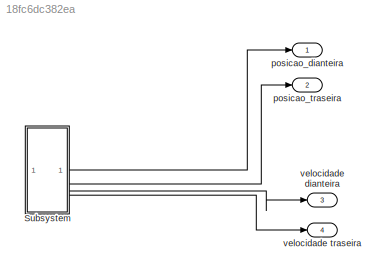
MODEL slx_18fc6dc382ea
KIND model
CONFIG AbsTol = auto
CONFIG EnableMultiTasking = off
CONFIG FixedStep = auto
CONFIG MaxStep = auto
CONFIG MinStep = auto
CONFIG RelTol = 1e-3
CONFIG SampleTimeConstraint = Unconstrained
CONFIG SolverName = VariableStepAuto
CONFIG StartTime = 0.0
CONFIG StopTime = 10.0
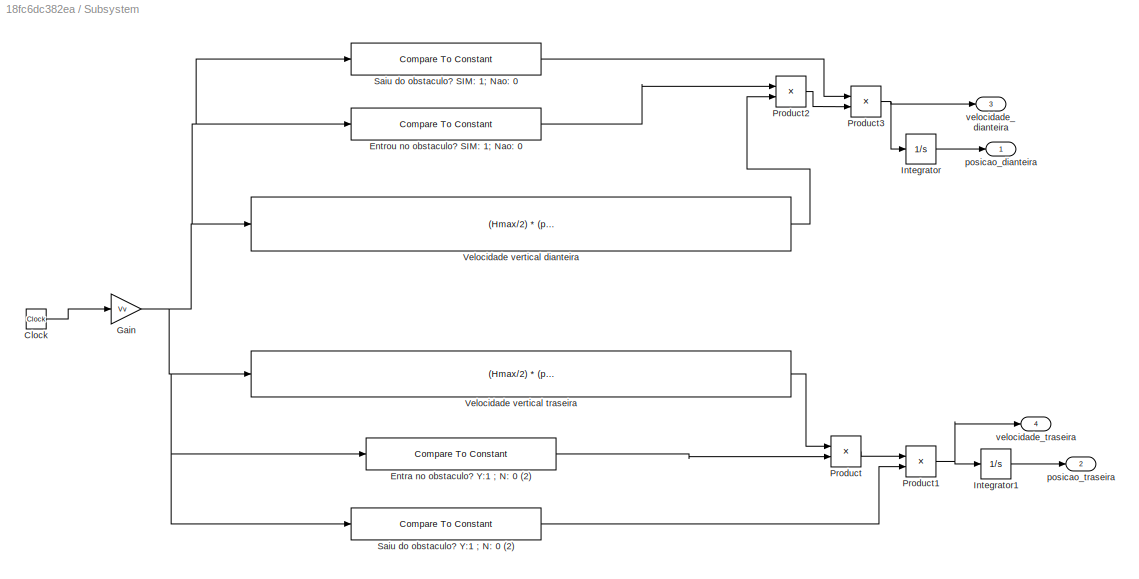
BLOCK [SubSystem] Subsystem
BLOCK [Clock] Subsystem/Clock
BLOCK [Reference] Subsystem/Entra no obstaculo? Y:1 ; N: 0 (2)  REF=simulink/Logic and Bit
Operations/Compare
To Constant
  SourceBlock = simulink/Logic and Bit\nOperations/Compare\nTo Constant
  SourceType = Compare To Constant
BLOCK [Reference] Subsystem/Entrou no obstaculo? SIM: 1; Nao: 0   REF=simulink/Logic and Bit
Operations/Compare
To Constant
  SourceBlock = simulink/Logic and Bit\nOperations/Compare\nTo Constant
  SourceType = Compare To Constant
BLOCK [Gain] Subsystem/Gain
  Gain = Vv
BLOCK [Integrator] Subsystem/Integrator
BLOCK [Integrator] Subsystem/Integrator1
BLOCK [Product] Subsystem/Product
BLOCK [Product] Subsystem/Product1
BLOCK [Product] Subsystem/Product2
BLOCK [Product] Subsystem/Product3
BLOCK [Reference] Subsystem/Saiu do obstaculo? SIM: 1; Nao: 0   REF=simulink/Logic and Bit
Operations/Compare
To Constant
  SourceBlock = simulink/Logic and Bit\nOperations/Compare\nTo Constant
  SourceType = Compare To Constant
BLOCK [Reference] Subsystem/Saiu do obstaculo? Y:1 ; N: 0 (2)  REF=simulink/Logic and Bit
Operations/Compare
To Constant
  SourceBlock = simulink/Logic and Bit\nOperations/Compare\nTo Constant
  SourceType = Compare To Constant
BLOCK [Fcn] Subsystem/Velocidade vertical dianteira
  Expr = (Hmax/2) * (pi*Vv/Lqm) * sin( (pi/Lqm) * (u(1) - (Xobs - a_Ax)) );
BLOCK [Fcn] Subsystem/Velocidade vertical traseira
  Expr = (Hmax/2) * (pi*Vv/Lqm) * sin( (pi/Lqm) * (u(1) - a2 - Xobs) )
BLOCK [Outport] Subsystem/posicao_dianteira
BLOCK [Outport] Subsystem/posicao_traseira
  Port = 2
BLOCK [Outport] Subsystem/velocidade_dianteira
  Port = 3
BLOCK [Outport] Subsystem/velocidade_traseira
  Port = 4
BLOCK [Outport] posicao_dianteira
BLOCK [Outport] posicao_traseira
  Port = 2
BLOCK [Outport] velocidade dianteira
  Port = 3
BLOCK [Outport] velocidade traseira
  Port = 4
LINE Subsystem/Clock:1 -> Subsystem/Gain:1
LINE Subsystem/Entra no obstaculo? Y:1 ; N: 0 (2):1 -> Subsystem/Product:2
LINE Subsystem/Entrou no obstaculo? SIM: 1; Nao: 0 :1 -> Subsystem/Product2:1
NET Subsystem/Gain:1 -> Subsystem/Entra no obstaculo? Y:1 ; N: 0 (2):1, Subsystem/Entrou no obstaculo? SIM: 1; Nao: 0 :1, Subsystem/Saiu do obstaculo? SIM: 1; Nao: 0 :1, Subsystem/Saiu do obstaculo? Y:1 ; N: 0 (2):1, Subsystem/Velocidade vertical dianteira:1, Subsystem/Velocidade vertical traseira:1
LINE Subsystem/Integrator1:1 -> Subsystem/posicao_traseira:1
LINE Subsystem/Integrator:1 -> Subsystem/posicao_dianteira:1
NET Subsystem/Product1:1 -> Subsystem/Integrator1:1, Subsystem/velocidade_traseira:1
LINE Subsystem/Product2:1 -> Subsystem/Product3:2
NET Subsystem/Product3:1 -> Subsystem/Integrator:1, Subsystem/velocidade_dianteira:1
LINE Subsystem/Product:1 -> Subsystem/Product1:1
LINE Subsystem/Saiu do obstaculo? SIM: 1; Nao: 0 :1 -> Subsystem/Product3:1
LINE Subsystem/Saiu do obstaculo? Y:1 ; N: 0 (2):1 -> Subsystem/Product1:2
LINE Subsystem/Velocidade vertical dianteira:1 -> Subsystem/Product2:2
LINE Subsystem/Velocidade vertical traseira:1 -> Subsystem/Product:1
LINE Subsystem:1 -> posicao_dianteira:1
LINE Subsystem:2 -> posicao_traseira:1
LINE Subsystem:3 -> velocidade dianteira:1
LINE Subsystem:4 -> velocidade traseira:1
note: NET lines group one-source signal fan-out (src -> all destinations, sorted); 1:1 wires keep LINE
